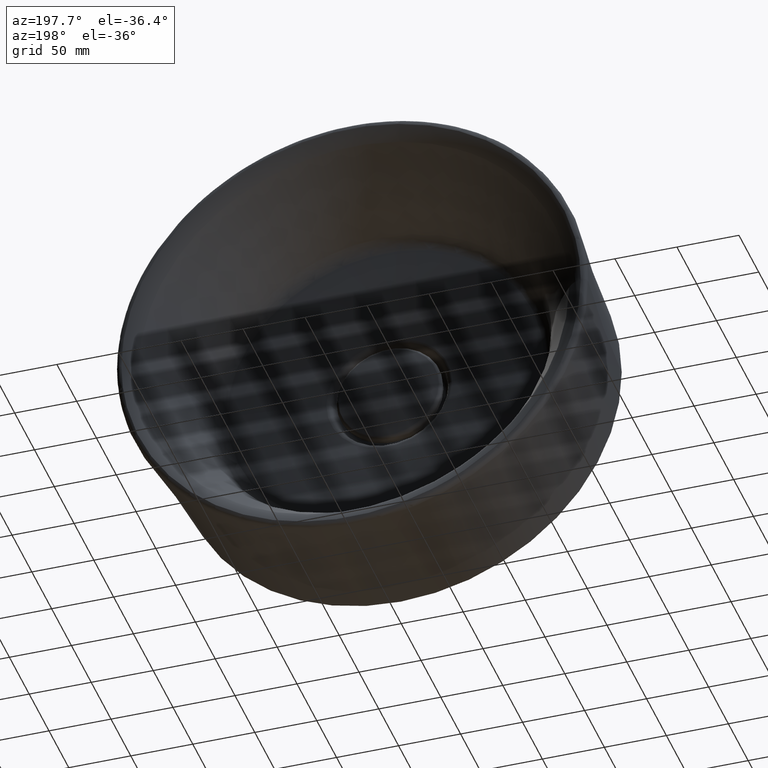
[diagram: clean part render]
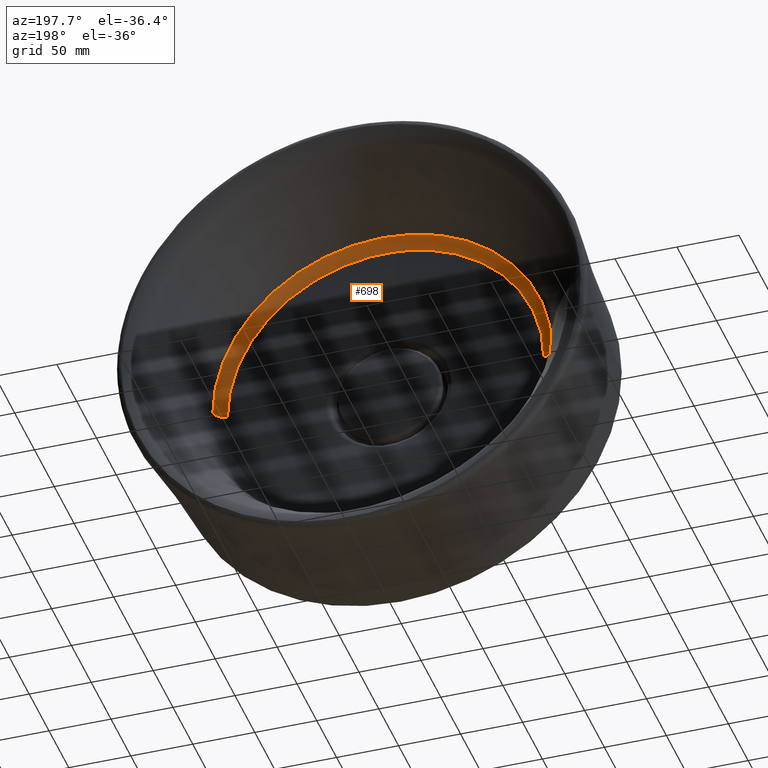
[diagram: same view with one face highlighted and labeled with its STEP entity id]
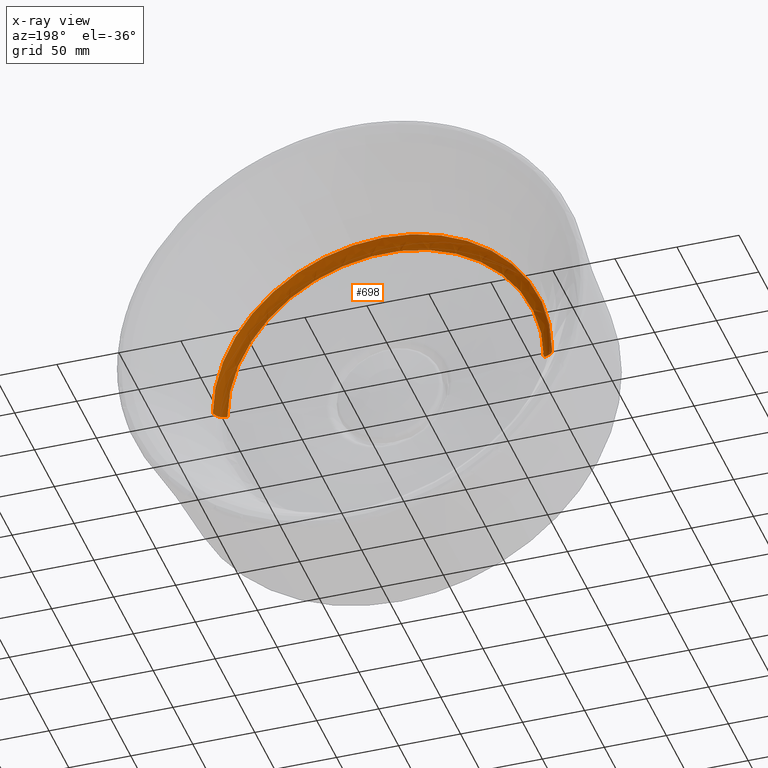
[diagram: x-ray of the same camera — body ghosted, the highlighted face saturated]
A machine part, auxiliary view. The second image highlights one B-rep face of the part: STEP entity #698.
The next image is the same camera in x-ray: the body ghosted, the highlighted face saturated — about 0% of this face is hidden behind the body in this view.
In plain terms, the highlighted face is a SurfaceOfRevolution surface.
Its self-contained STEP definition (entity closure, byte-faithful):
#166=SURFACE_OF_REVOLUTION('',#2107,#186);
#186=AXIS1_PLACEMENT('',#9198,#7084);
#698=ADVANCED_FACE('',(#1267),#166,.F.);
#1267=FACE_OUTER_BOUND('',#1682,.T.);
#1682=EDGE_LOOP('',(#2621,#2622,#2623,#2624));
#2104=B_SPLINE_CURVE_WITH_KNOTS('',3,(#9177,#9178,#9179,#9180),
 .UNSPECIFIED.,.F.,.F.,(4,4),(0.,1.),.UNSPECIFIED.);
#2105=B_SPLINE_CURVE_WITH_KNOTS('',3,(#9184,#9185,#9186,#9187),
 .UNSPECIFIED.,.F.,.F.,(4,4),(0.,1.),.UNSPECIFIED.);
#2107=B_SPLINE_CURVE_WITH_KNOTS('',3,(#9194,#9195,#9196,#9197),
 .UNSPECIFIED.,.F.,.F.,(4,4),(0.,1.),.UNSPECIFIED.);
#2621=ORIENTED_EDGE('',*,*,#4982,.T.);
#2622=ORIENTED_EDGE('',*,*,#4983,.T.);
#2623=ORIENTED_EDGE('',*,*,#4980,.F.);
#2624=ORIENTED_EDGE('',*,*,#4977,.F.);
#4415=VERTEX_POINT('',#9159);
#4416=VERTEX_POINT('',#9161);
#4417=VERTEX_POINT('',#9181);
#4418=VERTEX_POINT('',#9183);
#4977=EDGE_CURVE('',#4415,#4416,#5883,.T.);
#4980=EDGE_CURVE('',#4416,#4417,#2104,.T.);
#4982=EDGE_CURVE('',#4415,#4418,#2105,.T.);
#4983=EDGE_CURVE('',#4418,#4417,#5886,.T.);
#5883=CIRCLE('',#6321,136.7931248788);
#5886=CIRCLE('',#6324,127.622084714);
#6321=AXIS2_PLACEMENT_3D('',#9160,#7073,#7074);
#6324=AXIS2_PLACEMENT_3D('',#9193,#7082,#7083);
#7073=DIRECTION('',(0.,-1.,0.));
#7074=DIRECTION('',(1.,0.,0.));
#7082=DIRECTION('',(0.,-1.,0.));
#7083=DIRECTION('',(1.,0.,0.));
#7084=DIRECTION('',(0.,-1.,0.));
#9159=CARTESIAN_POINT('',(136.7931248788,47.54396405316,0.));
#9160=CARTESIAN_POINT('',(0.,47.54396405316,0.));
#9161=CARTESIAN_POINT('',(-136.7931248788,47.54396405316,1.675232625282E-014));
#9177=CARTESIAN_POINT('',(-136.7931248788,47.54396405316,-3.08971681573E-010));
#9178=CARTESIAN_POINT('',(-135.7806334835,42.53352420379,-3.918798532666E-010));
#9179=CARTESIAN_POINT('',(-132.7236200953,39.86707225392,4.164944444987E-010));
#9180=CARTESIAN_POINT('',(-127.622084714,39.54460820355,-1.24680821223E-012));
#9181=CARTESIAN_POINT('',(-127.622084714,39.54460820355,1.562919775456E-014));
#9183=CARTESIAN_POINT('',(127.622084714,39.54460820355,0.));
#9184=CARTESIAN_POINT('',(136.7931248788,47.54396405316,3.088501676629E-010));
#9185=CARTESIAN_POINT('',(135.7806334835,42.53352420379,3.917469742675E-010));
#9186=CARTESIAN_POINT('',(132.7236200953,39.86707225392,-4.163768163092E-010));
#9187=CARTESIAN_POINT('',(127.622084714,39.54460820355,1.360134227468E-012));
#9193=CARTESIAN_POINT('',(0.,39.54460820355,0.));
#9194=CARTESIAN_POINT('',(-136.7911099701,47.54396405316,-0.7424602645651));
#9195=CARTESIAN_POINT('',(-135.7786334884,42.53352420379,-0.7369648522053));
#9196=CARTESIAN_POINT('',(-132.7216651288,39.86707225392,-0.7203725638792));
#9197=CARTESIAN_POINT('',(-127.6202048912,39.54460820355,-0.6926833995868));
#9198=CARTESIAN_POINT('',(0.,49.52469084241,0.));